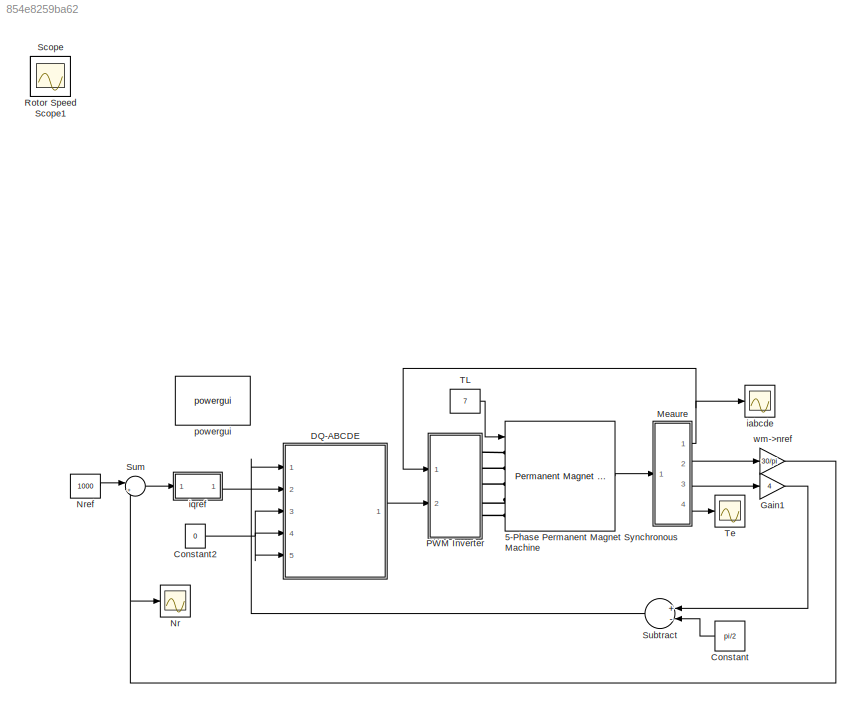
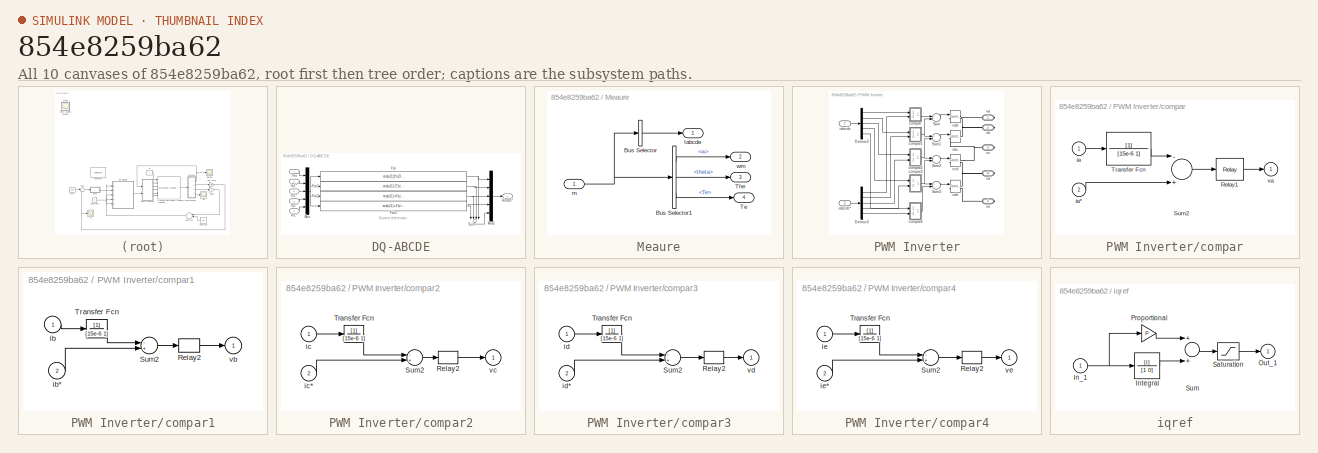
[diagram: thumbnail index - all 10 canvases of the model, root first then tree order]
MODEL slx_854e8259ba62
KIND model
BLOCK [Reference] 5-Phase Permanent Magnet Synchronous Machine  REF=powerlib/Machines/Permanent Magnet
Synchronous Machine
  Flat = 120
  Flux = 0.05
  FluxDistribution = Sinusoidal
  Inductance = 8.5e-3
  InitialConditions = [0,0, 0,0]
  InitialConditions5ph = [0 0 0 0 0 0]
  La = 1350e-6
  MachineConstant = Flux linkage established by magnets (V.s)
  MeasurementBus = on
  Mechanical = [0.002 0.02 4]
  MechanicalLoad = Torque Tm
  NbPhases = 5
  PolePairs = 4
  Ports = [1, 1, 0, 0, 0, 5]
  PresetModel = No
  RefAngle = 90 degrees behind phase A axis (modified Park)
  Resistance = 0.12
  RotorType = Round
  ShowDetailedParameters = on
  SourceBlock = powerlib/Machines/Permanent Magnet\nSynchronous Machine
  SourceType = Permanent Magnet Synchronous Machine
  TorqueCst = 0.5
  TsBlock = -1
  TsPowergui = 0
  VoltageCst = 24.6211
  dqInductances = [8.5e-3,8.5e-3]
BLOCK [Constant] Constant
  Value = pi/2
BLOCK [Constant] Constant2
  Value = 0
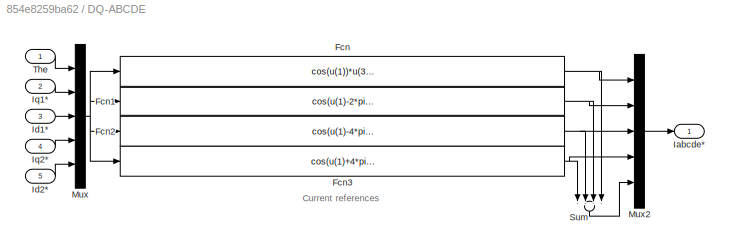
BLOCK [SubSystem] DQ-ABCDE
  Ports = [5, 1]
  RequestExecContextInheritance = off
BLOCK [Fcn] DQ-ABCDE/Fcn
  Expr = cos(u(1))*u(3) - sin(u(1))*u(2) + 0*u(4) + 1*u(5)
BLOCK [Fcn] DQ-ABCDE/Fcn1
  Expr = cos(u(1)-2*pi/5)*u(3) - sin(u(1)-2*pi/5)*u(2) + sin(6*pi/5)*u(4) + cos(6*pi/5)*u(5)
BLOCK [Fcn] DQ-ABCDE/Fcn2
  Expr = cos(u(1)-4*pi/5)*u(3) -sin(u(1)-4*pi/5)*u(2) + sin(12*pi/5)*u(4) + cos(12*pi/5)*u(5)
BLOCK [Fcn] DQ-ABCDE/Fcn3
  Expr = cos(u(1)+4*pi/5)*u(3) - sin(u(1)+4*pi/5)*u(2) + sin(18*pi/5)*u(4) + cos(18*pi/5)*u(5)
BLOCK [Outport] DQ-ABCDE/Iabcde*
  IconDisplay = Port number
  InitialOutput = 0
BLOCK [Inport] DQ-ABCDE/Id1* 
  IconDisplay = Port number
  Port = 3
BLOCK [Inport] DQ-ABCDE/Id2*
  IconDisplay = Port number
  Port = 5
BLOCK [Inport] DQ-ABCDE/Iq1* 
  IconDisplay = Port number
  Port = 2
BLOCK [Inport] DQ-ABCDE/Iq2*
  IconDisplay = Port number
  Port = 4
BLOCK [Mux] DQ-ABCDE/Mux
  Inputs = 5
  Ports = [5, 1]
BLOCK [Mux] DQ-ABCDE/Mux2
  Inputs = 5
  Ports = [5, 1]
BLOCK [Sum] DQ-ABCDE/Sum
  Inputs = ----
  Ports = [4, 1]
BLOCK [Inport] DQ-ABCDE/The
  IconDisplay = Port number
BLOCK [Gain] Gain1
  Gain = 4
BLOCK [SubSystem] Meaure
  Ports = [1, 4]
  RequestExecContextInheritance = off
BLOCK [BusSelector] Meaure/Bus Selector
  OutputAsBus = on
  OutputSignals = ias,ibs,ics,ids,ies
  Ports = [1, 1]
BLOCK [BusSelector] Meaure/Bus Selector1
  OutputSignals = w,theta,Te
  Ports = [1, 3]
BLOCK [Outport] Meaure/Iabcde
  IconDisplay = Port number
BLOCK [Outport] Meaure/Te
  IconDisplay = Port number
  Port = 4
BLOCK [Outport] Meaure/The
  IconDisplay = Port number
  Port = 3
BLOCK [Inport] Meaure/m
  IconDisplay = Port number
BLOCK [Outport] Meaure/wm
  IconDisplay = Port number
  Port = 2
BLOCK [Scope] Nr
  DataFormat = StructureWithTime
  Floating = off
  LimitDataPoints = off
  NumInputPorts = 1
  Ports = [1]
  SampleTime = 0
  SaveName = Nr
  SaveToWorkspace = on
  ShowLegends = off
  YMax = 1200
  YMin = 200
  ZoomMode = yonly
BLOCK [Constant] Nref
  Value = 1000
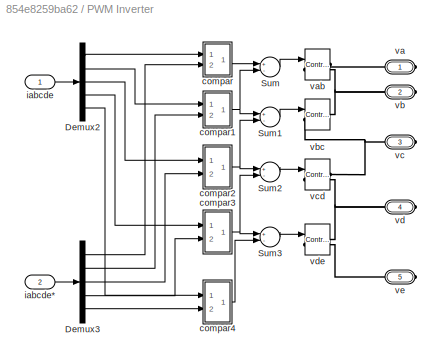
BLOCK [SubSystem] PWM Inverter
  Ports = [2, 0, 0, 0, 0, 0, 5]
  RequestExecContextInheritance = off
BLOCK [Demux] PWM Inverter/Demux2
  Outputs = 5
  Ports = [1, 5]
BLOCK [Demux] PWM Inverter/Demux3
  Outputs = 5
  Ports = [1, 5]
BLOCK [Sum] PWM Inverter/Sum
  Inputs = +-
  Ports = [2, 1]
BLOCK [Sum] PWM Inverter/Sum1
  Inputs = +-
  Ports = [2, 1]
BLOCK [Sum] PWM Inverter/Sum2
  Inputs = +-
  Ports = [2, 1]
BLOCK [Sum] PWM Inverter/Sum3
  Inputs = +-
  Ports = [2, 1]
BLOCK [SubSystem] PWM Inverter/compar
  Ports = [2, 1]
  RequestExecContextInheritance = off
BLOCK [Relay] PWM Inverter/compar/Relay1
  OffOutputValue = -155
  OffSwitchValue = -0.1
  OnOutputValue = 155
  OnSwitchValue = 0.1
BLOCK [Sum] PWM Inverter/compar/Sum2
  Inputs = -+
  Ports = [2, 1]
BLOCK [TransferFcn] PWM Inverter/compar/Transfer Fcn
  Denominator = [15e-6 1]
BLOCK [Inport] PWM Inverter/compar/ia
  IconDisplay = Port number
BLOCK [Inport] PWM Inverter/compar/ia*
  IconDisplay = Port number
  Port = 2
BLOCK [Outport] PWM Inverter/compar/va
  IconDisplay = Port number
  InitialOutput = 0
BLOCK [SubSystem] PWM Inverter/compar1
  Ports = [2, 1]
  RequestExecContextInheritance = off
BLOCK [Relay] PWM Inverter/compar1/Relay2
  OffOutputValue = -155
  OffSwitchValue = -0.1
  OnOutputValue = 155
  OnSwitchValue = 0.1
BLOCK [Sum] PWM Inverter/compar1/Sum2
  Inputs = -+
  Ports = [2, 1]
BLOCK [TransferFcn] PWM Inverter/compar1/Transfer Fcn
  Denominator = [15e-6 1]
BLOCK [Inport] PWM Inverter/compar1/ib
  IconDisplay = Port number
BLOCK [Inport] PWM Inverter/compar1/ib*
  IconDisplay = Port number
  Port = 2
BLOCK [Outport] PWM Inverter/compar1/vb
  IconDisplay = Port number
  InitialOutput = 0
BLOCK [SubSystem] PWM Inverter/compar2
  Ports = [2, 1]
  RequestExecContextInheritance = off
BLOCK [Relay] PWM Inverter/compar2/Relay2
  OffOutputValue = -155
  OffSwitchValue = -0.1
  OnOutputValue = 155
  OnSwitchValue = 0.1
BLOCK [Sum] PWM Inverter/compar2/Sum2
  Inputs = -+
  Ports = [2, 1]
BLOCK [TransferFcn] PWM Inverter/compar2/Transfer Fcn
  Denominator = [15e-6 1]
BLOCK [Inport] PWM Inverter/compar2/ic
  IconDisplay = Port number
BLOCK [Inport] PWM Inverter/compar2/ic*
  IconDisplay = Port number
  Port = 2
BLOCK [Outport] PWM Inverter/compar2/vc
  IconDisplay = Port number
  InitialOutput = 0
BLOCK [SubSystem] PWM Inverter/compar3
  Ports = [2, 1]
  RequestExecContextInheritance = off
BLOCK [Relay] PWM Inverter/compar3/Relay2
  OffOutputValue = -155
  OffSwitchValue = -0.1
  OnOutputValue = 155
  OnSwitchValue = 0.1
BLOCK [Sum] PWM Inverter/compar3/Sum2
  Inputs = -+
  Ports = [2, 1]
BLOCK [TransferFcn] PWM Inverter/compar3/Transfer Fcn
  Denominator = [15e-6 1]
BLOCK [Inport] PWM Inverter/compar3/id
  IconDisplay = Port number
BLOCK [Inport] PWM Inverter/compar3/id*
  IconDisplay = Port number
  Port = 2
BLOCK [Outport] PWM Inverter/compar3/vd
  IconDisplay = Port number
  InitialOutput = 0
BLOCK [SubSystem] PWM Inverter/compar4
  Ports = [2, 1]
  RequestExecContextInheritance = off
BLOCK [Relay] PWM Inverter/compar4/Relay2
  OffOutputValue = -155
  OffSwitchValue = -0.1
  OnOutputValue = 155
  OnSwitchValue = 0.1
BLOCK [Sum] PWM Inverter/compar4/Sum2
  Inputs = -+
  Ports = [2, 1]
BLOCK [TransferFcn] PWM Inverter/compar4/Transfer Fcn
  Denominator = [15e-6 1]
BLOCK [Inport] PWM Inverter/compar4/ie
  IconDisplay = Port number
BLOCK [Inport] PWM Inverter/compar4/ie*
  IconDisplay = Port number
  Port = 2
BLOCK [Outport] PWM Inverter/compar4/ve
  IconDisplay = Port number
  InitialOutput = 0
BLOCK [Inport] PWM Inverter/iabcde
  IconDisplay = Port number
BLOCK [Inport] PWM Inverter/iabcde*
  IconDisplay = Port number
  Port = 2
BLOCK [PMIOPort] PWM Inverter/va
  Port = 1
  Side = Right
BLOCK [Reference] PWM Inverter/vab  REF=powerlib/Electrical
Sources/Controlled Voltage Source
  Amplitude = 0
  AttributesFormatString = \n
  Description = source block
  Frequency = 0
  Initialize = on
  Measurements = None
  Phase = 0
  Ports = [1, 0, 0, 0, 0, 1, 1]
  SourceBlock = powerlib/Electrical\nSources/Controlled Voltage Source
  SourceType = Controlled Voltage Source
  Source_Type = AC
BLOCK [PMIOPort] PWM Inverter/vb
  Port = 2
  Side = Right
BLOCK [Reference] PWM Inverter/vbc  REF=powerlib/Electrical
Sources/Controlled Voltage Source
  Amplitude = 0
  AttributesFormatString = \n
  Description = source block
  Frequency = 0
  Initialize = on
  Measurements = None
  Phase = 0
  Ports = [1, 0, 0, 0, 0, 1, 1]
  SourceBlock = powerlib/Electrical\nSources/Controlled Voltage Source
  SourceType = Controlled Voltage Source
  Source_Type = AC
BLOCK [PMIOPort] PWM Inverter/vc
  Port = 3
  Side = Right
BLOCK [Reference] PWM Inverter/vcd  REF=powerlib/Electrical
Sources/Controlled Voltage Source
  Amplitude = 0
  AttributesFormatString = \n
  Description = source block
  Frequency = 0
  Initialize = on
  Measurements = None
  Phase = 0
  Ports = [1, 0, 0, 0, 0, 1, 1]
  SourceBlock = powerlib/Electrical\nSources/Controlled Voltage Source
  SourceType = Controlled Voltage Source
  Source_Type = AC
BLOCK [PMIOPort] PWM Inverter/vd
  Port = 4
  Side = Right
BLOCK [Reference] PWM Inverter/vde  REF=powerlib/Electrical
Sources/Controlled Voltage Source
  Amplitude = 0
  AttributesFormatString = \n
  Description = source block
  Frequency = 0
  Initialize = on
  Measurements = None
  Phase = 0
  Ports = [1, 0, 0, 0, 0, 1, 1]
  SourceBlock = powerlib/Electrical\nSources/Controlled Voltage Source
  SourceType = Controlled Voltage Source
  Source_Type = AC
BLOCK [PMIOPort] PWM Inverter/ve
  Port = 5
  Side = Right
BLOCK [Scope] Rotor Speed
  Floating = off
  IOType = viewer
  LimitDataPoints = off
  NumInputPorts = 2
  Ports = []
  SampleTime = 0
  SaveName = ScopeData1
  ShowLegends = off
  YMax = 5~5
  YMin = -5~-5
  ZoomMode = yonly
BLOCK [Scope] Scope
  Floating = off
  IOType = viewer
  LimitDataPoints = off
  NumInputPorts = 2
  Ports = []
  SampleTime = 0
  ShowLegends = off
  YMax = 5~5
  YMin = -5~-5
  ZoomMode = xonly
BLOCK [Scope] Scope1
  Floating = off
  IOType = viewer
  LimitDataPoints = off
  NumInputPorts = 2
  Ports = []
  SampleTime = 0
  SaveName = ScopeData2
  ShowLegends = off
  YMax = 5~5
  YMin = -5~-5
BLOCK [Sum] Subtract
  InputSameDT = off
  Inputs = +-
  OutDataTypeStr = Inherit: Inherit via internal rule
  Ports = [2, 1]
  SaturateOnIntegerOverflow = off
BLOCK [Sum] Sum
  IconShape = round
  InputSameDT = off
  Inputs = |+-
  OutDataTypeStr = Inherit: Inherit via internal rule
  Ports = [2, 1]
  SaturateOnIntegerOverflow = off
BLOCK [Constant] TL
  Value = 7
BLOCK [Scope] Te
  DataFormat = StructureWithTime
  Floating = off
  LimitDataPoints = off
  NumInputPorts = 1
  Ports = [1]
  SampleTime = 0
  SaveName = Te
  SaveToWorkspace = on
  ShowLegends = off
  YMax = 200
  YMin = -200
BLOCK [Scope] iabcde
  DataFormat = StructureWithTime
  Floating = off
  LimitDataPoints = off
  NumInputPorts = 1
  Ports = [1]
  SampleTime = 0
  SaveName = iabcde
  SaveToWorkspace = on
  ShowLegends = off
  YMax = 200
  YMin = -200
BLOCK [SubSystem] iqref
  Ports = [1, 1]
  RequestExecContextInheritance = off
BLOCK [Inport] iqref/In_1
  IconDisplay = Port number
BLOCK [TransferFcn] iqref/Integral
  Denominator = [1 0]
  Numerator = [I]
BLOCK [Outport] iqref/Out_1
  IconDisplay = Port number
  InitialOutput = 0
BLOCK [Gain] iqref/Proportional
  Gain = P
BLOCK [Saturate] iqref/Saturation
  InputPortMap = u0
  LowerLimit = min
  Ports = [1, 1]
  UpperLimit = max
BLOCK [Sum] iqref/Sum
  Ports = [2, 1]
BLOCK [Reference] powergui  REF=powerlib/powergui
  DisableRonSwitches = off
  DisableSnubberDevices = off
  DisableVfSwitches = off
  DisplayEquations = off
  DisplayStyle = 1
  EnableUseOfTLC = off
  ErrMax = 1e-4
  Frange = [0:2:500]
  FreqAxis = off
  FunctionMessages = off
  HookPort = off
  Interpol = off
  Iterations = 50
  MaxFrequency = 1000
  Pbase = 100e6
  Ports = []
  ResistiveCurrentMeasurement = off
  RestoreLinks = warning
  RmsSteady = 1
  SPID = on
  SampleTime = Ts
  ShowGrid = off
  SolverType = Tustin
  SourceBlock = powerlib/powergui
  SourceType = PSB option menu block
  StartTime = 0.0
  SwTol = 0
  Ts = 0
  UnitsV = kV
  UnitsW = MW
  UserDataPersistent = on
  Xlog = on
  Ylog = off
  ZoomFFT = on
  cycles = 1
  display = off
  echomessages = off
  frequency = 60
  frequencyindice = 0
  frequencyindicesteady = 1
  fundamental = 60
  methode = off
  save = off
  structure = 0
  variable = ZData
  x0status = blocks
BLOCK [Gain] wm->nref
  Gain = 30/pi
ANNOTATION DQ-ABCDE: Current references
LINE 5-Phase Permanent Magnet Synchronous Machine:1 -> Meaure:1
NET Constant2:1 -> DQ-ABCDE:3, DQ-ABCDE:4, DQ-ABCDE:5
LINE Constant:1 -> Subtract:2
NET DQ-ABCDE/Fcn1:1 -> DQ-ABCDE/Mux2:2, DQ-ABCDE/Sum:3
NET DQ-ABCDE/Fcn2:1 -> DQ-ABCDE/Mux2:3, DQ-ABCDE/Sum:2
NET DQ-ABCDE/Fcn3:1 -> DQ-ABCDE/Mux2:4, DQ-ABCDE/Sum:1
NET DQ-ABCDE/Fcn:1 -> DQ-ABCDE/Mux2:1, DQ-ABCDE/Sum:4
LINE DQ-ABCDE/Id1* :1 -> DQ-ABCDE/Mux:3
LINE DQ-ABCDE/Id2*:1 -> DQ-ABCDE/Mux:5
LINE DQ-ABCDE/Iq1* :1 -> DQ-ABCDE/Mux:2
LINE DQ-ABCDE/Iq2*:1 -> DQ-ABCDE/Mux:4
LINE DQ-ABCDE/Mux2:1 -> DQ-ABCDE/Iabcde*:1
NET DQ-ABCDE/Mux:1 -> DQ-ABCDE/Fcn1:1, DQ-ABCDE/Fcn2:1, DQ-ABCDE/Fcn3:1, DQ-ABCDE/Fcn:1
LINE DQ-ABCDE/Sum:1 -> DQ-ABCDE/Mux2:5
LINE DQ-ABCDE/The:1 -> DQ-ABCDE/Mux:1
LINE DQ-ABCDE:1 -> PWM Inverter:2
LINE Gain1:1 -> Subtract:1
LINE Meaure/Bus Selector1:1 -> Meaure/wm:1
LINE Meaure/Bus Selector1:2 -> Meaure/The:1
LINE Meaure/Bus Selector1:3 -> Meaure/Te:1
LINE Meaure/Bus Selector:1 -> Meaure/Iabcde:1
NET Meaure/m:1 -> Meaure/Bus Selector1:1, Meaure/Bus Selector:1
NET Meaure:1 -> PWM Inverter:1, iabcde:1
LINE Meaure:2 -> wm->nref:1
LINE Meaure:3 -> Gain1:1
LINE Meaure:4 -> Te:1
LINE Nref:1 -> Sum:1
LINE PWM Inverter/Demux2:1 -> PWM Inverter/compar:1
LINE PWM Inverter/Demux2:2 -> PWM Inverter/compar1:1
LINE PWM Inverter/Demux2:3 -> PWM Inverter/compar2:1
LINE PWM Inverter/Demux2:4 -> PWM Inverter/compar3:1
LINE PWM Inverter/Demux2:5 -> PWM Inverter/compar4:1
LINE PWM Inverter/Demux3:1 -> PWM Inverter/compar:2
LINE PWM Inverter/Demux3:2 -> PWM Inverter/compar1:2
LINE PWM Inverter/Demux3:3 -> PWM Inverter/compar2:2
LINE PWM Inverter/Demux3:4 -> PWM Inverter/compar3:2
LINE PWM Inverter/Demux3:5 -> PWM Inverter/compar4:2
LINE PWM Inverter/Sum1:1 -> PWM Inverter/vbc:1
LINE PWM Inverter/Sum2:1 -> PWM Inverter/vcd:1
LINE PWM Inverter/Sum3:1 -> PWM Inverter/vde:1
LINE PWM Inverter/Sum:1 -> PWM Inverter/vab:1
LINE PWM Inverter/compar/Relay1:1 -> PWM Inverter/compar/va:1
LINE PWM Inverter/compar/Sum2:1 -> PWM Inverter/compar/Relay1:1
LINE PWM Inverter/compar/Transfer Fcn:1 -> PWM Inverter/compar/Sum2:1
LINE PWM Inverter/compar/ia*:1 -> PWM Inverter/compar/Sum2:2
LINE PWM Inverter/compar/ia:1 -> PWM Inverter/compar/Transfer Fcn:1
LINE PWM Inverter/compar1/Relay2:1 -> PWM Inverter/compar1/vb:1
LINE PWM Inverter/compar1/Sum2:1 -> PWM Inverter/compar1/Relay2:1
LINE PWM Inverter/compar1/Transfer Fcn:1 -> PWM Inverter/compar1/Sum2:1
LINE PWM Inverter/compar1/ib*:1 -> PWM Inverter/compar1/Sum2:2
LINE PWM Inverter/compar1/ib:1 -> PWM Inverter/compar1/Transfer Fcn:1
NET PWM Inverter/compar1:1 -> PWM Inverter/Sum1:1, PWM Inverter/Sum:2
LINE PWM Inverter/compar2/Relay2:1 -> PWM Inverter/compar2/vc:1
LINE PWM Inverter/compar2/Sum2:1 -> PWM Inverter/compar2/Relay2:1
LINE PWM Inverter/compar2/Transfer Fcn:1 -> PWM Inverter/compar2/Sum2:1
LINE PWM Inverter/compar2/ic*:1 -> PWM Inverter/compar2/Sum2:2
LINE PWM Inverter/compar2/ic:1 -> PWM Inverter/compar2/Transfer Fcn:1
NET PWM Inverter/compar2:1 -> PWM Inverter/Sum1:2, PWM Inverter/Sum2:1
LINE PWM Inverter/compar3/Relay2:1 -> PWM Inverter/compar3/vd:1
LINE PWM Inverter/compar3/Sum2:1 -> PWM Inverter/compar3/Relay2:1
LINE PWM Inverter/compar3/Transfer Fcn:1 -> PWM Inverter/compar3/Sum2:1
LINE PWM Inverter/compar3/id*:1 -> PWM Inverter/compar3/Sum2:2
LINE PWM Inverter/compar3/id:1 -> PWM Inverter/compar3/Transfer Fcn:1
NET PWM Inverter/compar3:1 -> PWM Inverter/Sum2:2, PWM Inverter/Sum3:1
LINE PWM Inverter/compar4/Relay2:1 -> PWM Inverter/compar4/ve:1
LINE PWM Inverter/compar4/Sum2:1 -> PWM Inverter/compar4/Relay2:1
LINE PWM Inverter/compar4/Transfer Fcn:1 -> PWM Inverter/compar4/Sum2:1
LINE PWM Inverter/compar4/ie*:1 -> PWM Inverter/compar4/Sum2:2
LINE PWM Inverter/compar4/ie:1 -> PWM Inverter/compar4/Transfer Fcn:1
LINE PWM Inverter/compar4:1 -> PWM Inverter/Sum3:2
LINE PWM Inverter/compar:1 -> PWM Inverter/Sum:1
LINE PWM Inverter/iabcde*:1 -> PWM Inverter/Demux3:1
LINE PWM Inverter/iabcde:1 -> PWM Inverter/Demux2:1
LINE Subtract:1 -> DQ-ABCDE:1
LINE Sum:1 -> iqref:1
LINE TL:1 -> 5-Phase Permanent Magnet Synchronous Machine:1
NET iqref/In_1:1 -> iqref/Integral:1, iqref/Proportional:1
LINE iqref/Integral:1 -> iqref/Sum:2
LINE iqref/Proportional:1 -> iqref/Sum:1
LINE iqref/Saturation:1 -> iqref/Out_1:1
LINE iqref/Sum:1 -> iqref/Saturation:1
LINE iqref:1 -> DQ-ABCDE:2
NET wm->nref:1 -> Nr:1, Sum:2
PLINE 5-Phase Permanent Magnet Synchronous Machine:LConn1 -- PWM Inverter:RConn1
PLINE 5-Phase Permanent Magnet Synchronous Machine:LConn2 -- PWM Inverter:RConn2
PLINE 5-Phase Permanent Magnet Synchronous Machine:LConn3 -- PWM Inverter:RConn3
PLINE 5-Phase Permanent Magnet Synchronous Machine:LConn4 -- PWM Inverter:RConn4
PLINE 5-Phase Permanent Magnet Synchronous Machine:LConn5 -- PWM Inverter:RConn5
PLINE PWM Inverter/va:RConn1 -- PWM Inverter/vab:RConn1
PNET net1: PWM Inverter/vab:LConn1 -- PWM Inverter/vb:RConn1 -- PWM Inverter/vbc:RConn1
PNET net2: PWM Inverter/vbc:LConn1 -- PWM Inverter/vc:RConn1 -- PWM Inverter/vcd:RConn1
PNET net3: PWM Inverter/vcd:LConn1 -- PWM Inverter/vd:RConn1 -- PWM Inverter/vde:RConn1
PLINE PWM Inverter/vde:LConn1 -- PWM Inverter/ve:RConn1
note: NET lines group one-source signal fan-out (src -> all destinations, sorted); 1:1 wires keep LINE; PNET lines group multi-terminal physical nets as a canonical sorted terminal list (undirected conserving connections); 2-terminal nets keep the pairwise PLINE form
